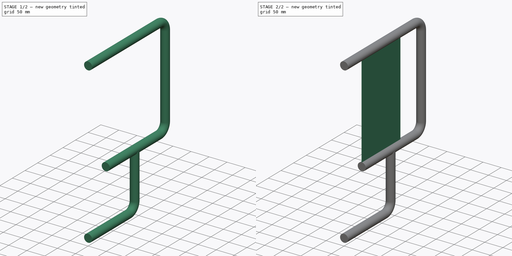
[diagram: build sequence overview — one tinted view per stage of 2, left to right]
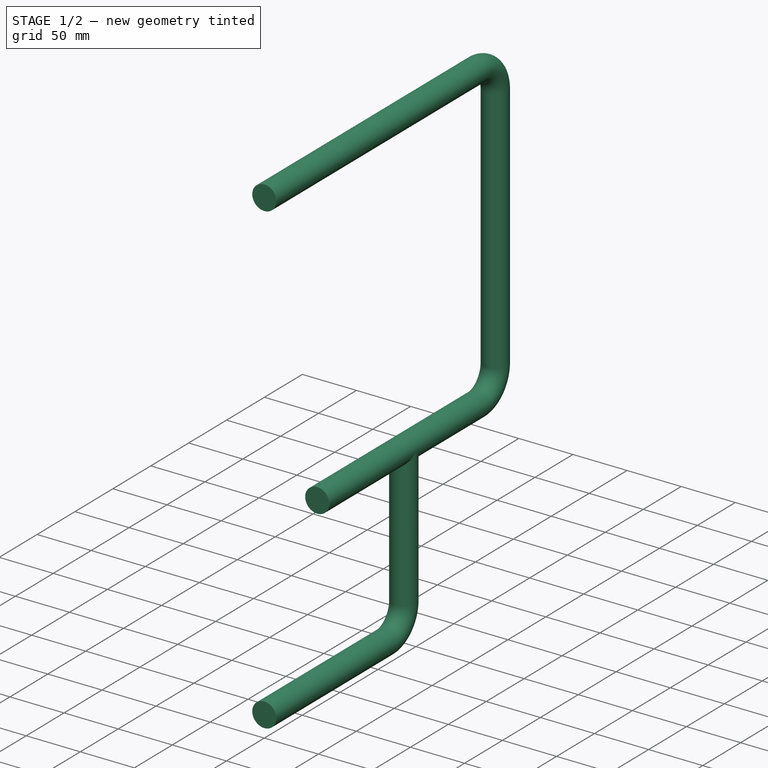
[diagram: stage 1 of 2 — iso view after this stage's code; geometry added in this stage tinted green]
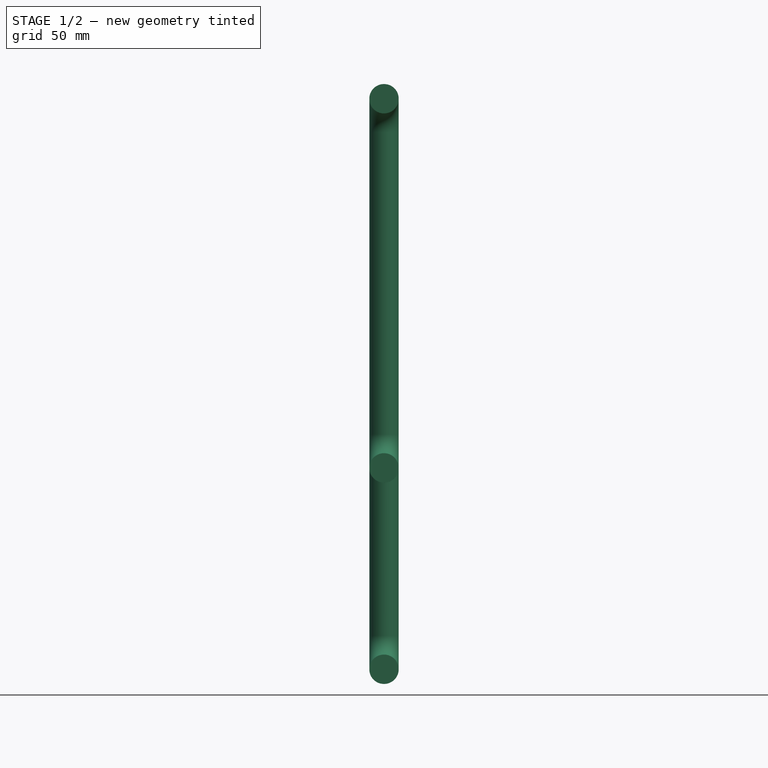
[diagram: stage 1 of 2 — front view after this stage's code; geometry added in this stage tinted green]
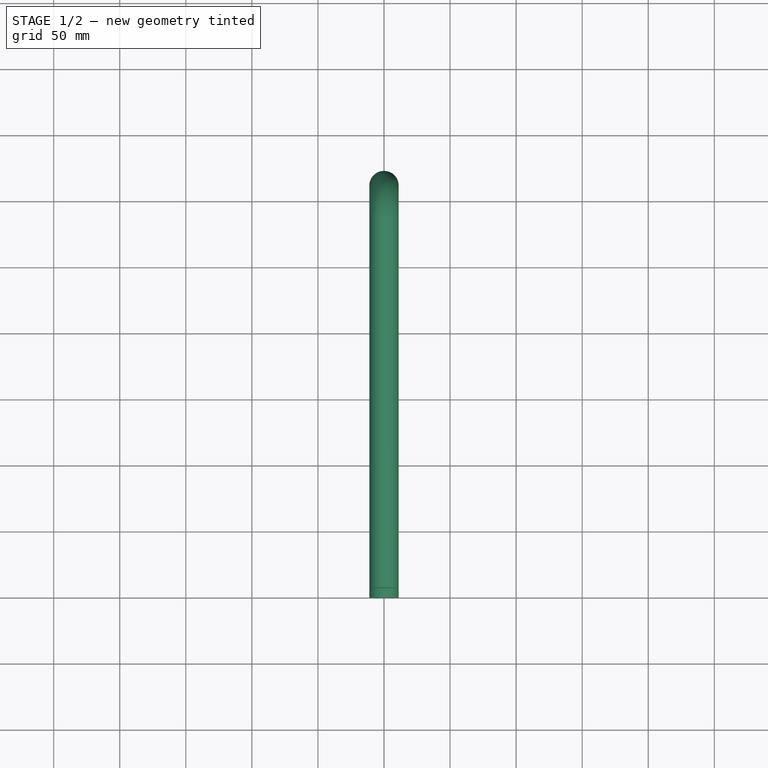
[diagram: stage 1 of 2 — top view after this stage's code; geometry added in this stage tinted green]
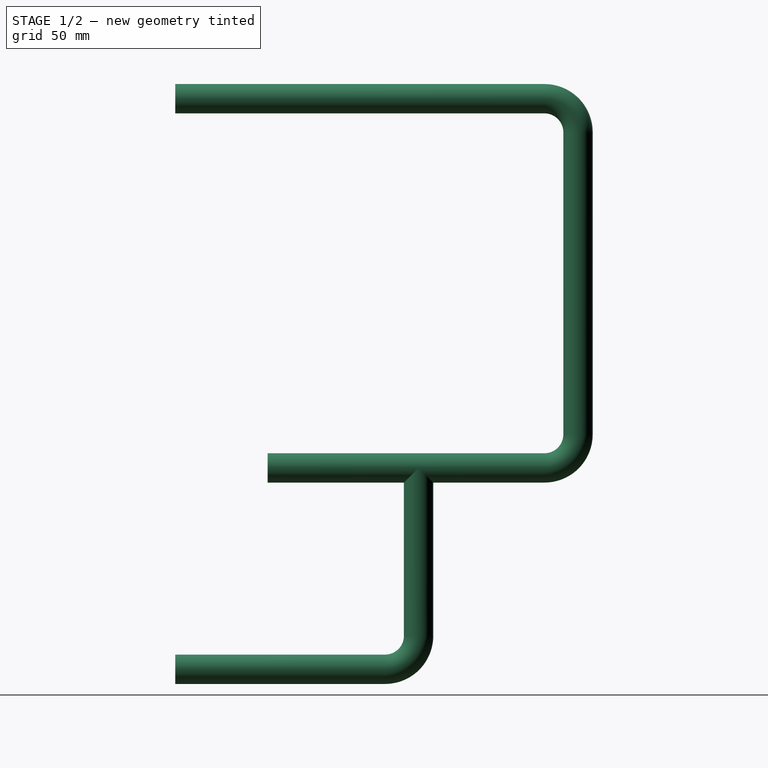
[diagram: stage 1 of 2 — right view after this stage's code; geometry added in this stage tinted green]
FCSTD DOCUMENT  (FreeCAD 0.21R33345 (Git))
Label: Side panel
License: All rights reserved
LicenseURL: http://en.wikipedia.org/wiki/All_rights_reserved
objects: Sketcher::SketchObject×5, PartDesign::Pad×2, PartDesign::AdditivePipe×1, PartDesign::Plane×1, PartDesign::Body×1
note: 13 computed .brp shape members not serialized (recipe doc carries the construction recipe); baked Part::Feature solids carry a one-line shape summary decoded from their .brp

FEATURE [Sketcher::SketchObject] Sketch
  FullyConstrained = true
  MapMode = 5
  Placement = pos=(0,0,0) rot=(1,0,0;1.5708rad)
  Support = -> [XZ_Plane]
  sketch-geometry (1):
    g0: Circle CenterX=0 CenterY=0 CenterZ=0 NormalX=0 NormalY=0 NormalZ=1 AngleXU=0 Radius=11.1125
  constraints (2):
    c: Coincident(g0,g-1)
    c: Diameter(g0) = 22.225
FEATURE [Sketcher::SketchObject] Sketch001
  FullyConstrained = true
  MapMode = 5
  Placement = pos=(0,0,0) rot=(0.57735,0.57735,0.57735;2.0944rad)
  Support = -> [YZ_Plane]
  sketch-geometry (9):
    g0: LineSegment StartX=0 StartY=0 StartZ=0 EndX=279.4 EndY=0 EndZ=0
    g1: ArcOfCircle CenterX=279.4 CenterY=-25.4 CenterZ=0 NormalX=0 NormalY=0 NormalZ=1 AngleXU=0 Radius=25.4 StartAngle=1e-16 EndAngle=1.5708
    g2: LineSegment StartX=304.8 StartY=-25.4 StartZ=0 EndX=304.8 EndY=-254 EndZ=0
    g3: ArcOfCircle CenterX=279.4 CenterY=-254 CenterZ=0 NormalX=0 NormalY=0 NormalZ=1 AngleXU=0 Radius=25.4 StartAngle=4.71239 EndAngle=6.28319
    g4: LineSegment StartX=279.4 StartY=-279.4 StartZ=0 EndX=184.15 EndY=-279.4 EndZ=0
    g5: LineSegment StartX=184.15 StartY=-279.4 StartZ=0 EndX=184.15 EndY=-406.4 EndZ=0
    g6: ArcOfCircle CenterX=158.75 CenterY=-406.4 CenterZ=0 NormalX=0 NormalY=0 NormalZ=1 AngleXU=0 Radius=25.4 StartAngle=4.71239 EndAngle=6.28319
    g7: LineSegment StartX=158.75 StartY=-431.8 StartZ=0 EndX=0 EndY=-431.8 EndZ=0
    g8: LineSegment StartX=184.15 StartY=-279.4 StartZ=0 EndX=69.85 EndY=-279.4 EndZ=0
  constraints (24):
    c: Coincident(g0,g-1)
    c: Horizontal(g0)
    c: Tangent(g0,g1) = 1.5708
    c: Tangent(g1,g2) = 1.5708
    c: Tangent(g2,g3) = 1.5708
    c: Horizontal(g4)
    c: Coincident(g4,g5)
    c: Vertical(g5)
    c: Tangent(g5,g6) = 1.5708
    c: PointOnObject(g7,g-2)
    c: Coincident(g8,g4)
    c: Horizontal(g8)
    c: Horizontal(g7)
    c: DistanceX(g0,g1) = 304.8
    c: Vertical(g2)
    c: Tangent(g3,g4) = 1.5708
    c: Tangent(g6,g7) = 1.5708
    c: Radius(g1) = 25.4
    c: Vertical(g0,g3)
    c: DistanceY(g3,g0) = 279.4
    c: DistanceX(g4,g2) = 120.65
    c: DistanceX(g8,g8) = 114.3
    c: DistanceY(g6,g8) = 152.4
    c: Equal(g3,g6)
FEATURE [PartDesign::AdditivePipe] AdditivePipe
  AuxilleryCurvelinear = true
  AuxillerySpineTangent = false
  Binormal = (0,0,0)
  Mode = 0
  Placement = pos=(0,0,0) rot=(1,0,0;1.5708rad)
  Profile = -> Sketch
  Refine = true
  Spine = -> Sketch001
  SpineTangent = false
  Transformation = 0
  Transition = 1
FEATURE [Sketcher::SketchObject] Sketch002
  FullyConstrained = true
  MapMode = 5
  Placement = pos=(0,0,0) rot=(0.57735,0.57735,0.57735;2.0944rad)
  Support = -> [YZ_Plane]
  expr: Constraints[13] = Sketch001.Constraints[13]
  expr: Constraints[17] = Sketch001.Constraints[17]
  expr: Constraints[19] = Sketch001.Constraints[19]
  expr: Constraints[20] = Sketch001.Constraints[20]
  expr: Constraints[21] = Sketch001.Constraints[21]
  expr: Constraints[22] = Sketch001.Constraints[22]
  sketch-geometry (9):
    g0: LineSegment StartX=0 StartY=0 StartZ=0 EndX=279.4 EndY=0 EndZ=0
    g1: ArcOfCircle CenterX=279.4 CenterY=-25.4 CenterZ=0 NormalX=0 NormalY=0 NormalZ=1 AngleXU=0 Radius=25.4 StartAngle=1e-16 EndAngle=1.5708
    g2: LineSegment StartX=304.8 StartY=-25.4 StartZ=0 EndX=304.8 EndY=-254 EndZ=0
    g3: ArcOfCircle CenterX=279.4 CenterY=-254 CenterZ=0 NormalX=0 NormalY=0 NormalZ=1 AngleXU=0 Radius=25.4 StartAngle=4.71239 EndAngle=6.28319
    g4: LineSegment StartX=279.4 StartY=-279.4 StartZ=0 EndX=184.15 EndY=-279.4 EndZ=0
    g5: LineSegment StartX=184.15 StartY=-279.4 StartZ=0 EndX=184.15 EndY=-406.4 EndZ=0
    g6: ArcOfCircle CenterX=158.75 CenterY=-406.4 CenterZ=0 NormalX=0 NormalY=0 NormalZ=1 AngleXU=0 Radius=25.4 StartAngle=4.71239 EndAngle=6.28319
    g7: LineSegment StartX=158.75 StartY=-431.8 StartZ=0 EndX=0 EndY=-431.8 EndZ=0
    g8: LineSegment StartX=184.15 StartY=-279.4 StartZ=0 EndX=69.85 EndY=-279.4 EndZ=0
  constraints (24):
    c: Coincident(g0,g-1)
    c: Horizontal(g0)
    c: Tangent(g0,g1) = 1.5708
    c: Tangent(g1,g2) = 1.5708
    c: Tangent(g2,g3) = 1.5708
    c: Horizontal(g4)
    c: Coincident(g4,g5)
    c: Vertical(g5)
    c: Tangent(g5,g6) = 1.5708
    c: PointOnObject(g7,g-2)
    c: Coincident(g8,g4)
    c: Horizontal(g8)
    c: Horizontal(g7)
    c: DistanceX(g0,g1) = 304.8
    c: Vertical(g2)
    c: Tangent(g3,g4) = 1.5708
    c: Tangent(g6,g7) = 1.5708
    c: Radius(g1) = 25.4
    c: Vertical(g0,g3)
    c: DistanceY(g3,g0) = 279.4
    c: DistanceX(g4,g2) = 120.65
    c: DistanceX(g8,g8) = 114.3
    c: DistanceY(g6,g8) = 152.4
    c: Equal(g3,g6)
FEATURE [PartDesign::Plane] DatumPlane
  AttachmentOffset = pos=(0,0,-114.3) rot=(0,0,1;0rad)
  Length = 80.5886
  MapMode = 7
  Placement = pos=(7.75e-14,69.85,-279.4) rot=(0,0.707107,0.707107;3.14159rad)
  ResizeMode = 0
  Support = -> [Sketch002]
  Width = 498.42
FEATURE [Sketcher::SketchObject] Sketch003
  FullyConstrained = true
  MapMode = 5
  Placement = pos=(7.75e-14,69.85,-279.4) rot=(0,0.707107,0.707107;3.14159rad)
  Support = -> [DatumPlane]
  sketch-geometry (1):
    g0: Circle CenterX=0 CenterY=0 CenterZ=0 NormalX=0 NormalY=0 NormalZ=1 AngleXU=0 Radius=11.1125
  constraints (2):
    c: Coincident(g0,g-1)
    c: Diameter(g0) = 22.225
FEATURE [PartDesign::Pad] Pad
  BaseFeature = -> AdditivePipe
  Direction = (2e-16,1,-2e-16)
  Length = 137
  Length2 = 10
  Placement = pos=(0,0,0) rot=(1,0,0;1.5708rad)
  Profile = -> Sketch003
  ReferenceAxis = -> Sketch003 [N_Axis]
  Refine = true
  Type = 0
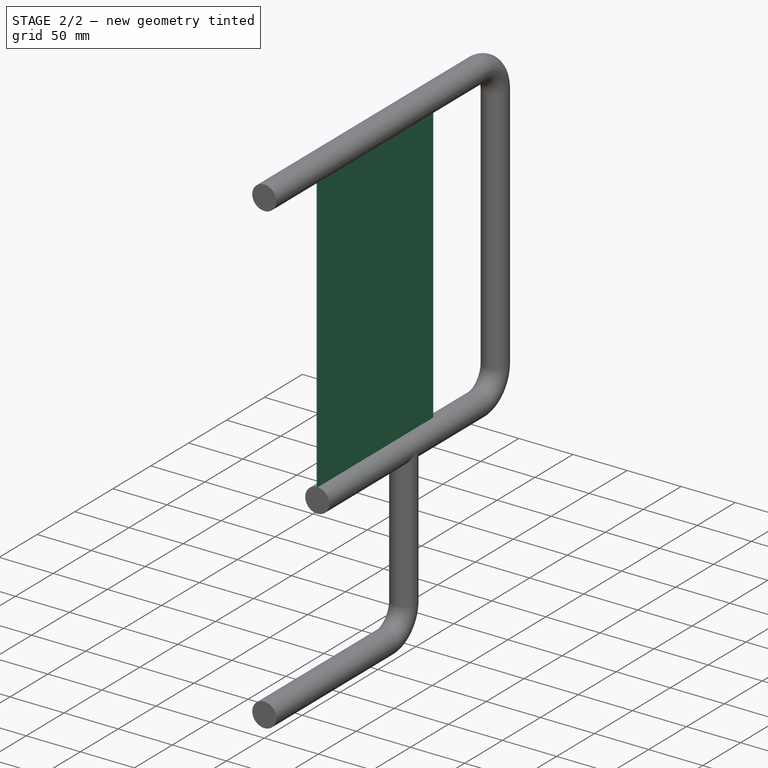
[diagram: stage 2 of 2 — iso view after this stage's code; geometry added in this stage tinted green]
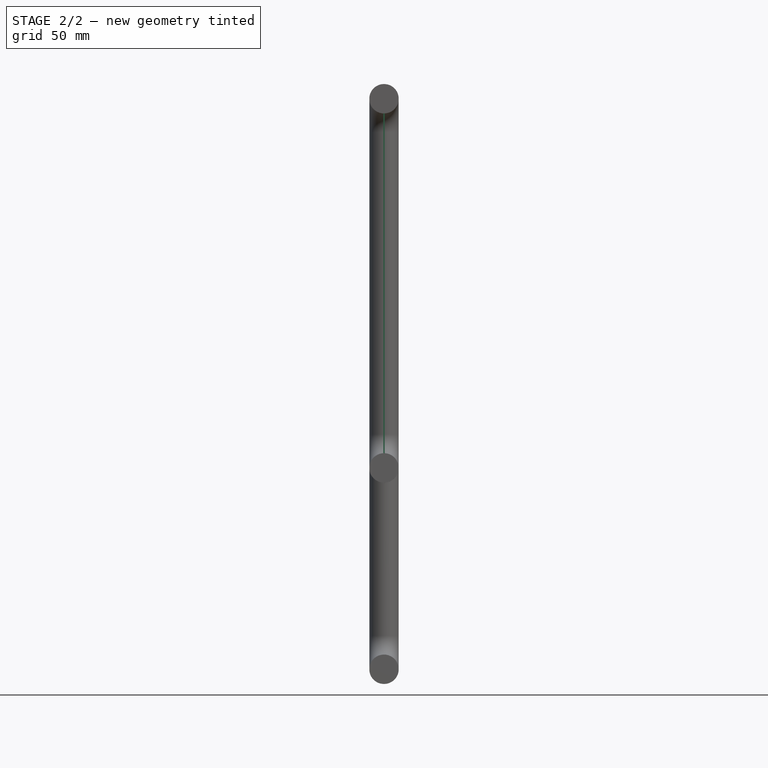
[diagram: stage 2 of 2 — front view after this stage's code; geometry added in this stage tinted green]
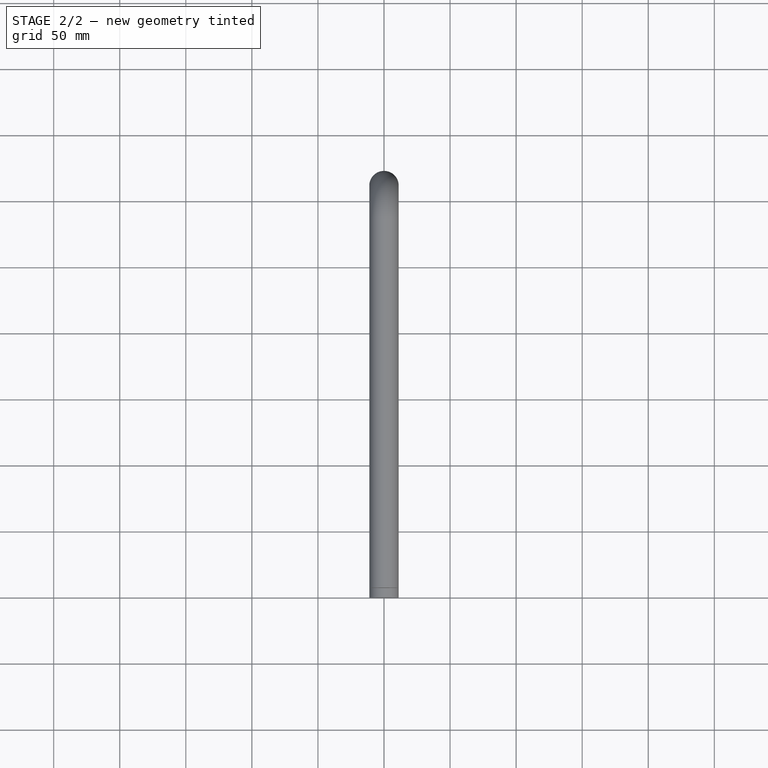
[diagram: stage 2 of 2 — top view after this stage's code; geometry added in this stage tinted green]
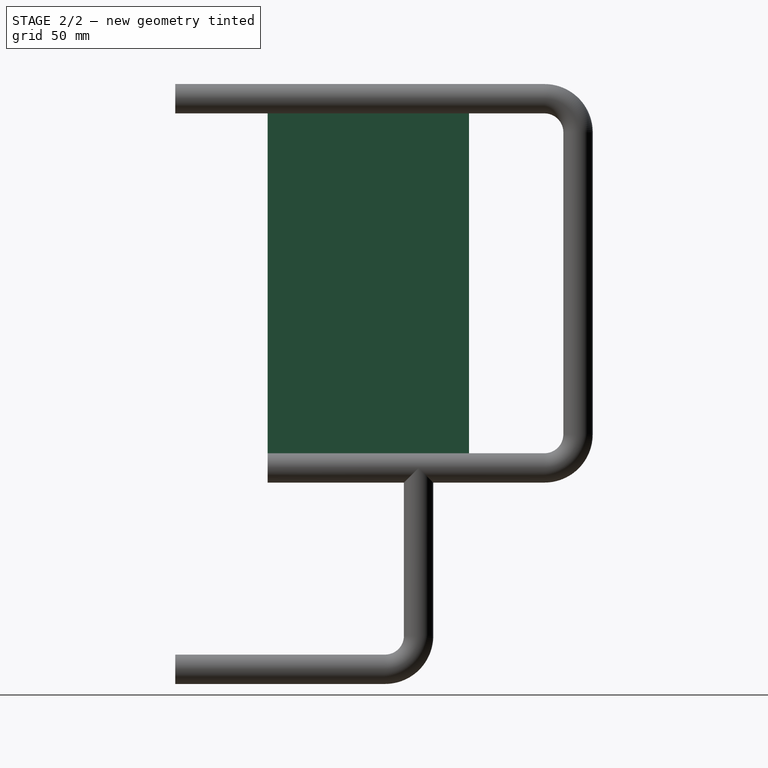
[diagram: stage 2 of 2 — right view after this stage's code; geometry added in this stage tinted green]
FEATURE [Sketcher::SketchObject] Sketch004
  ExternalGeometry = -> [Pad]
  FullyConstrained = false
  MapMode = 5
  Placement = pos=(0,0,0) rot=(0.57735,0.57735,0.57735;2.0944rad)
  Support = -> [YZ_Plane]
  sketch-geometry (6):
    g0: LineSegment StartX=279.4 StartY=-11.1125 StartZ=0 EndX=0 EndY=-11.1125 EndZ=0
    g1: LineSegment StartX=279.4 StartY=-268.288 StartZ=0 EndX=69.85 EndY=-268.288 EndZ=0
    g2: LineSegment StartX=222.25 StartY=-3.63159 StartZ=0 EndX=69.85 EndY=-3.63159 EndZ=0
    g3: LineSegment StartX=69.85 StartY=-3.63159 StartZ=0 EndX=69.85 EndY=-273.844 EndZ=0
    g4: LineSegment StartX=69.85 StartY=-273.844 StartZ=0 EndX=222.25 EndY=-273.844 EndZ=0
    g5: LineSegment StartX=222.25 StartY=-273.844 StartZ=0 EndX=222.25 EndY=-3.63159 EndZ=0
  constraints (14):
    c: Coincident(g0,g-4)
    c: Coincident(g0,g-3)
    c: Coincident(g1,g-7)
    c: Coincident(g1,g-5)
    c: Coincident(g2,g3)
    c: Coincident(g3,g4)
    c: Coincident(g4,g5)
    c: Coincident(g5,g2)
    c: Horizontal(g2)
    c: Horizontal(g4)
    c: Vertical(g3)
    c: Vertical(g5)
    c: PointOnObject(g3,g-5)
    c: DistanceX(g2,g2) = 152.4
FEATURE [PartDesign::Pad] Pad001
  BaseFeature = -> Pad
  Direction = (1,-2e-16,3e-16)
  Length = 1.016
  Length2 = 10
  Midplane = true
  Placement = pos=(0,0,0) rot=(1,0,0;1.5708rad)
  Profile = -> Sketch004
  ReferenceAxis = -> Sketch004 [N_Axis]
  Refine = true
  Type = 0
FEATURE [PartDesign::Body] Body
  Group = -> [Sketch,Sketch001,AdditivePipe,Sketch002,DatumPlane,Sketch003,Pad,Sketch004,Pad001]
  Origin = -> Origin
  Tip = -> Pad001
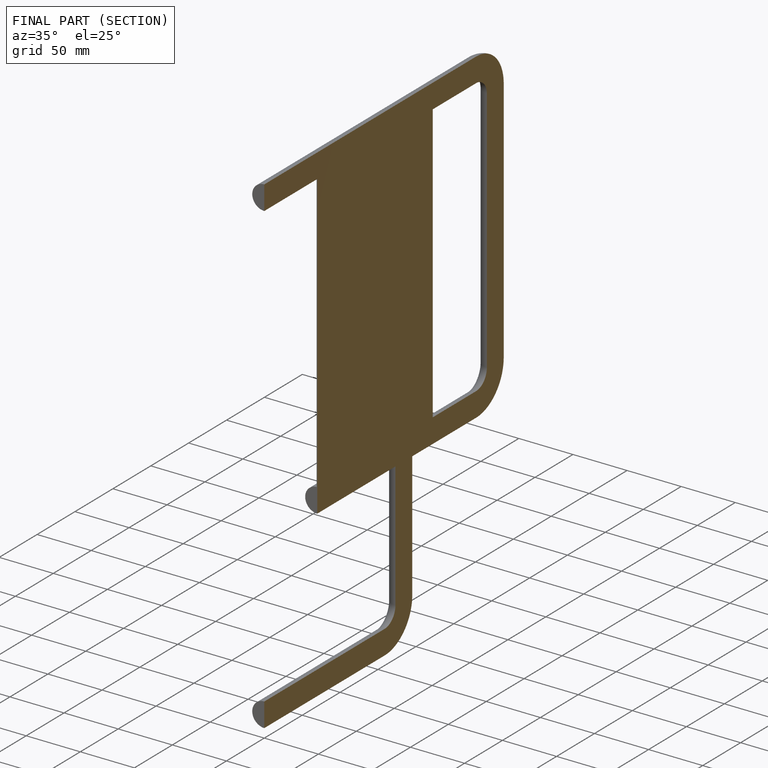
[diagram: finished part — half-section view (interior)]
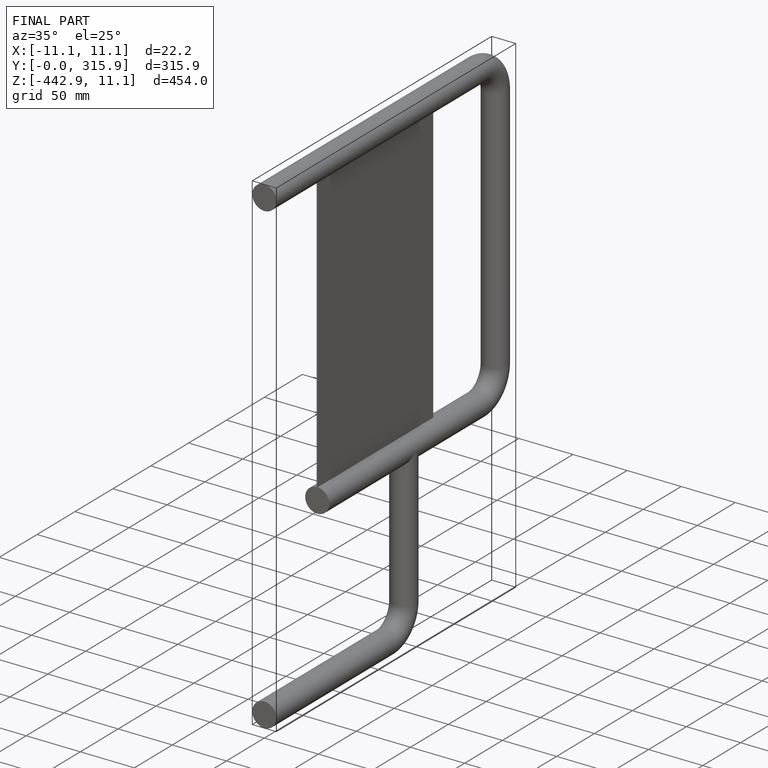
[diagram: finished part — iso view with bounding-box wireframe]
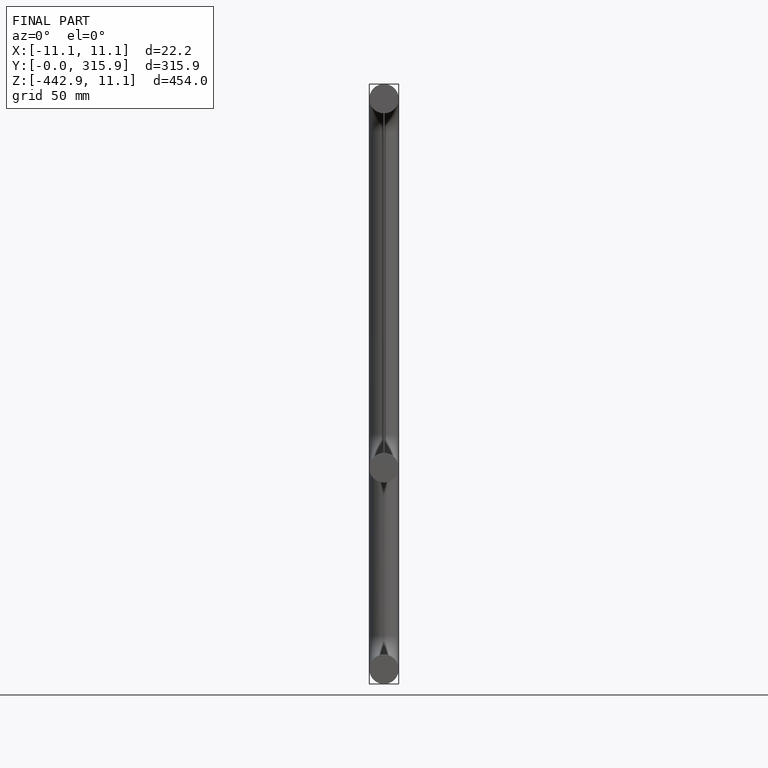
[diagram: finished part — front view with bounding-box wireframe]
